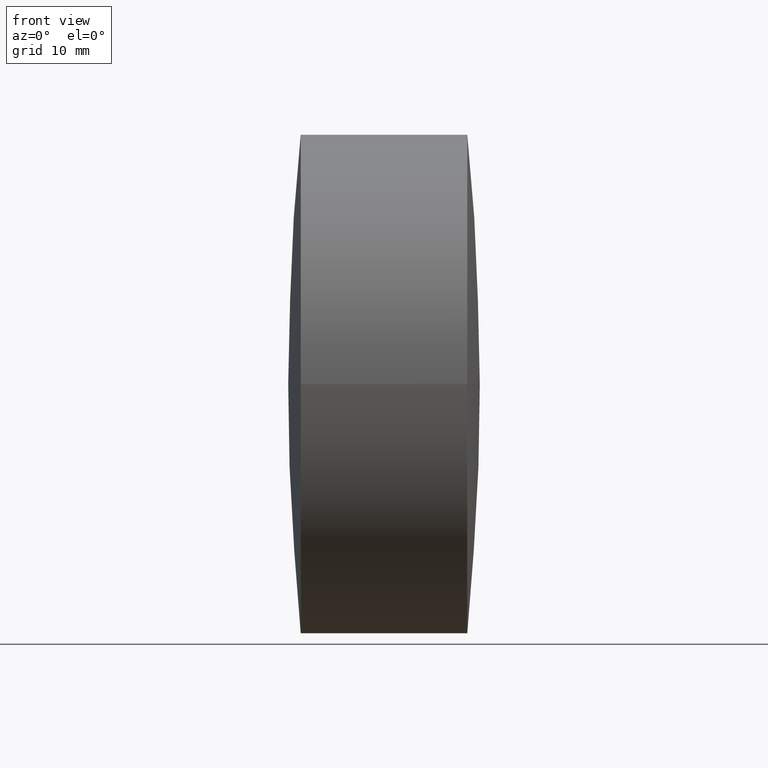
[diagram: clean part render]
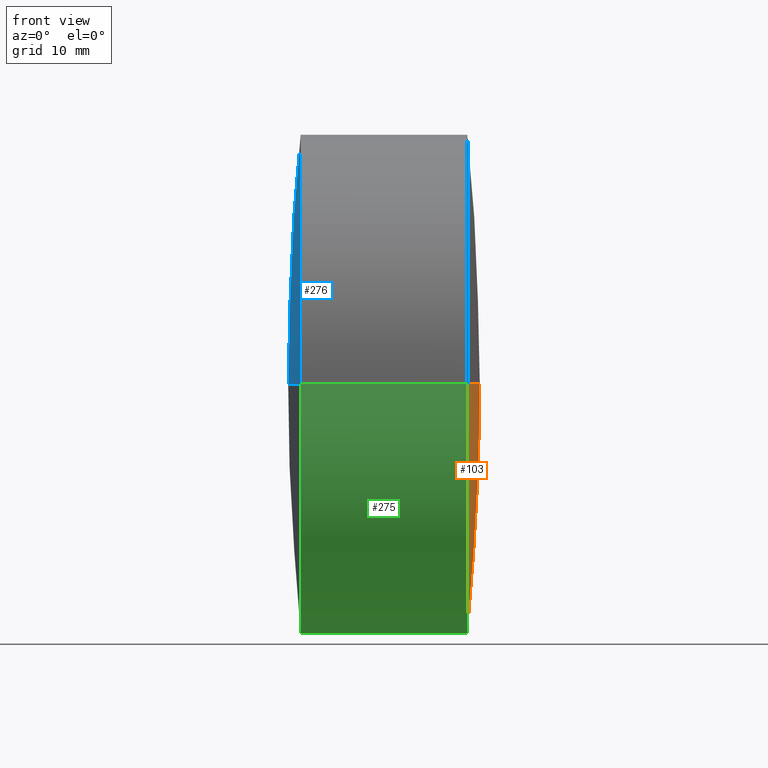
[diagram: same view with three faces highlighted in distinct colors, each labeled with its STEP entity id]
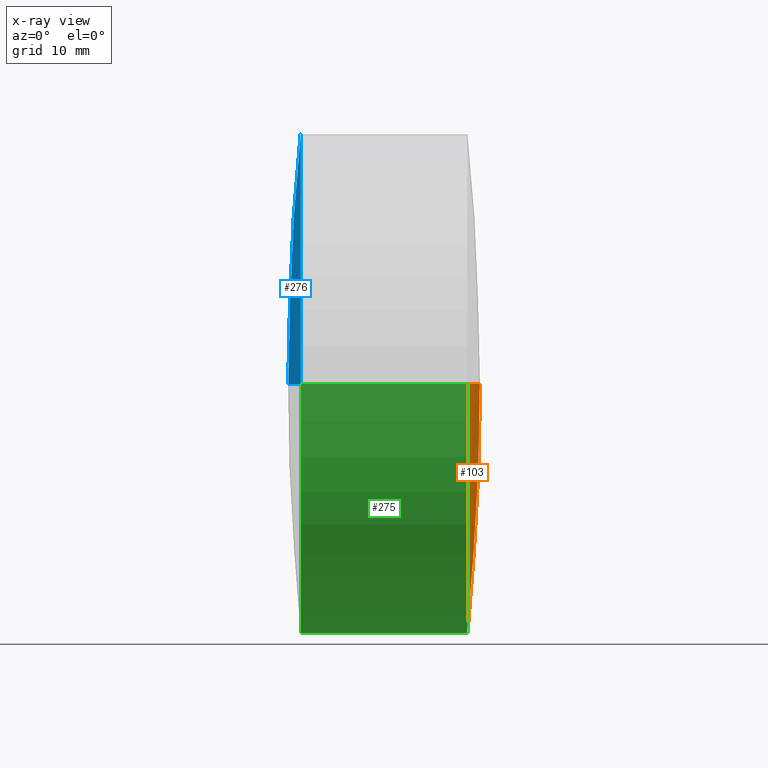
[diagram: x-ray of the same camera — body ghosted, the three highlighted faces saturated]
A machine part, front view with three faces highlighted in distinct colors.
The next image is the same camera in x-ray (body ghosted, the three faces saturated) — at least one of them is partly hidden behind the body in this view.
Their STEP definitions:

[orange] entity #103 — the highlighted spherical surface has radius 350.755 mm.
#3 = CARTESIAN_POINT ( 'NONE',  ( -99.06812836394114200, 133.9814138434225300, 0.0000000000000000000 ) ) ;
#5 = DIRECTION ( 'NONE',  ( 0.0000000000000000000, 0.0000000000000000000, -1.000000000000000000 ) ) ;
#8 = AXIS2_PLACEMENT_3D ( 'NONE', #77, #132, #74 ) ;
#9 = DIRECTION ( 'NONE',  ( 1.000000000000000000, 0.0000000000000000000, 0.0000000000000000000 ) ) ;
#21 = CARTESIAN_POINT ( 'NONE',  ( 249.9366127648179900, 168.9814138434225900, 0.0000000000000000000 ) ) ;
#26 = CARTESIAN_POINT ( 'NONE',  ( -99.06812836394114200, 133.9814138434225300, 0.0000000000000000000 ) ) ;
#34 = VERTEX_POINT ( 'NONE', #21 ) ;
#39 = AXIS2_PLACEMENT_3D ( 'NONE', #208, #72, #207 ) ;
#72 = DIRECTION ( 'NONE',  ( -1.000000000000000000, 1.772041571645068800E-014, -0.0000000000000000000 ) ) ;
#74 = DIRECTION ( 'NONE',  ( 0.0000000000000000000, 1.000000000000000000, 1.224646799147353200E-016 ) ) ;
#77 = CARTESIAN_POINT ( 'NONE',  ( -99.06812836394114200, 133.9814138434225300, 0.0000000000000000000 ) ) ;
#91 = VERTEX_POINT ( 'NONE', #253 ) ;
#103 = ADVANCED_FACE ( 'NONE', ( #297 ), #204, .T. ) ;
#123 = CIRCLE ( 'NONE', #214, 350.7553411287590800 ) ;
#124 = EDGE_LOOP ( 'NONE', ( #226, #210, #127 ) ) ;
#127 = ORIENTED_EDGE ( 'NONE', *, *, #220, .F. ) ;
#131 = CARTESIAN_POINT ( 'NONE',  ( 249.9366127648167400, 98.98141384341606400, -4.286263797015769600E-015 ) ) ;
#132 = DIRECTION ( 'NONE',  ( 2.170125038671178500E-030, 1.224646799147353200E-016, -1.000000000000000000 ) ) ;
#170 = VERTEX_POINT ( 'NONE', #131 ) ;
#178 = DIRECTION ( 'NONE',  ( 0.0000000000000000000, 0.0000000000000000000, 1.000000000000000000 ) ) ;
#204 = SPHERICAL_SURFACE ( 'NONE', #206, 350.7553411287590800 ) ;
#206 = AXIS2_PLACEMENT_3D ( 'NONE', #3, #5, #283 ) ;
#207 = DIRECTION ( 'NONE',  ( -1.744636181553802200E-014, -1.000000000000000000, 0.0000000000000000000 ) ) ;
#208 = CARTESIAN_POINT ( 'NONE',  ( 249.9366127648173700, 133.9814138434223000, 0.0000000000000000000 ) ) ;
#210 = ORIENTED_EDGE ( 'NONE', *, *, #240, .T. ) ;
#214 = AXIS2_PLACEMENT_3D ( 'NONE', #26, #178, #9 ) ;
#220 = EDGE_CURVE ( 'NONE', #34, #170, #228, .T. ) ;
#226 = ORIENTED_EDGE ( 'NONE', *, *, #258, .F. ) ;
#228 = CIRCLE ( 'NONE', #39, 35.00000000000030600 ) ;
#240 = EDGE_CURVE ( 'NONE', #91, #170, #241, .T. ) ;
#241 = CIRCLE ( 'NONE', #8, 350.7553411287590800 ) ;
#253 = CARTESIAN_POINT ( 'NONE',  ( 251.6872127648179900, 133.9814138434163300, 0.0000000000000000000 ) ) ;
#258 = EDGE_CURVE ( 'NONE', #91, #34, #123, .T. ) ;
#283 = DIRECTION ( 'NONE',  ( 1.772531508114250600E-014, 1.000000000000000000, 0.0000000000000000000 ) ) ;
#297 = FACE_OUTER_BOUND ( 'NONE', #124, .T. ) ;

[blue] entity #276 — the highlighted spherical surface has radius 350.755 mm.
#1 = DIRECTION ( 'NONE',  ( -1.000000000000000000, 1.772041571645068800E-014, -0.0000000000000000000 ) ) ;
#7 = CARTESIAN_POINT ( 'NONE',  ( 226.6046127648167500, 98.98141384342911000, -4.286263797015637900E-015 ) ) ;
#15 = AXIS2_PLACEMENT_3D ( 'NONE', #185, #95, #117 ) ;
#29 = CIRCLE ( 'NONE', #299, 350.7553411287618100 ) ;
#43 = DIRECTION ( 'NONE',  ( 0.0000000000000000000, 0.0000000000000000000, 1.000000000000000000 ) ) ;
#61 = VERTEX_POINT ( 'NONE', #66 ) ;
#66 = CARTESIAN_POINT ( 'NONE',  ( 224.8540127648180900, 133.9814138434283800, 0.0000000000000000000 ) ) ;
#70 = CIRCLE ( 'NONE', #288, 350.7553411287618100 ) ;
#71 = VERTEX_POINT ( 'NONE', #110 ) ;
#95 = DIRECTION ( 'NONE',  ( 0.0000000000000000000, 0.0000000000000000000, -1.000000000000000000 ) ) ;
#96 = DIRECTION ( 'NONE',  ( 0.0000000000000000000, 1.000000000000000000, 1.224646799147353200E-016 ) ) ;
#97 = DIRECTION ( 'NONE',  ( 2.170125038671178500E-030, 1.224646799147353200E-016, -1.000000000000000000 ) ) ;
#110 = CARTESIAN_POINT ( 'NONE',  ( 226.6046127648180300, 168.9814138434219000, 0.0000000000000000000 ) ) ;
#115 = DIRECTION ( 'NONE',  ( 1.000000000000000000, 0.0000000000000000000, 0.0000000000000000000 ) ) ;
#117 = DIRECTION ( 'NONE',  ( 1.772531508114236400E-014, 1.000000000000000000, 0.0000000000000000000 ) ) ;
#125 = EDGE_CURVE ( 'NONE', #199, #71, #150, .T. ) ;
#126 = SPHERICAL_SURFACE ( 'NONE', #15, 350.7553411287618100 ) ;
#133 = ORIENTED_EDGE ( 'NONE', *, *, #243, .F. ) ;
#146 = EDGE_CURVE ( 'NONE', #71, #61, #29, .T. ) ;
#150 = CIRCLE ( 'NONE', #281, 34.99999999999989300 ) ;
#153 = ORIENTED_EDGE ( 'NONE', *, *, #146, .T. ) ;
#159 = CARTESIAN_POINT ( 'NONE',  ( 575.6093538935799600, 133.9814138434221300, 0.0000000000000000000 ) ) ;
#185 = CARTESIAN_POINT ( 'NONE',  ( 575.6093538935799600, 133.9814138434221300, 0.0000000000000000000 ) ) ;
#186 = FACE_OUTER_BOUND ( 'NONE', #192, .T. ) ;
#192 = EDGE_LOOP ( 'NONE', ( #133, #302, #153 ) ) ;
#199 = VERTEX_POINT ( 'NONE', #7 ) ;
#230 = CARTESIAN_POINT ( 'NONE',  ( 575.6093538935799600, 133.9814138434221300, 0.0000000000000000000 ) ) ;
#243 = EDGE_CURVE ( 'NONE', #199, #61, #70, .T. ) ;
#251 = DIRECTION ( 'NONE',  ( -1.744636181553822700E-014, -1.000000000000000000, 0.0000000000000000000 ) ) ;
#254 = CARTESIAN_POINT ( 'NONE',  ( 226.6046127648173800, 133.9814138434227000, 0.0000000000000000000 ) ) ;
#276 = ADVANCED_FACE ( 'NONE', ( #186 ), #126, .T. ) ;
#281 = AXIS2_PLACEMENT_3D ( 'NONE', #254, #1, #251 ) ;
#288 = AXIS2_PLACEMENT_3D ( 'NONE', #159, #97, #96 ) ;
#299 = AXIS2_PLACEMENT_3D ( 'NONE', #230, #43, #115 ) ;
#302 = ORIENTED_EDGE ( 'NONE', *, *, #125, .T. ) ;

[green] entity #275 — the highlighted cylindrical surface (partial cylindrical patch) has radius 35 mm, axis along (-1, 0, -0).
#2 = EDGE_CURVE ( 'NONE', #71, #199, #164, .T. ) ;
#7 = CARTESIAN_POINT ( 'NONE',  ( 226.6046127648167500, 98.98141384342911000, -4.286263797015637900E-015 ) ) ;
#21 = CARTESIAN_POINT ( 'NONE',  ( 249.9366127648179900, 168.9814138434225900, 0.0000000000000000000 ) ) ;
#34 = VERTEX_POINT ( 'NONE', #21 ) ;
#36 = LINE ( 'NONE', #92, #166 ) ;
#38 = VECTOR ( 'NONE', #175, 1000.000000000000000 ) ;
#39 = AXIS2_PLACEMENT_3D ( 'NONE', #208, #72, #207 ) ;
#42 = EDGE_CURVE ( 'NONE', #34, #71, #223, .T. ) ;
#44 = CARTESIAN_POINT ( 'NONE',  ( 226.6046127648173800, 133.9814138434227000, 0.0000000000000000000 ) ) ;
#57 = ORIENTED_EDGE ( 'NONE', *, *, #220, .T. ) ;
#65 = EDGE_CURVE ( 'NONE', #170, #199, #36, .T. ) ;
#71 = VERTEX_POINT ( 'NONE', #110 ) ;
#72 = DIRECTION ( 'NONE',  ( -1.000000000000000000, 1.772041571645068800E-014, -0.0000000000000000000 ) ) ;
#83 = EDGE_LOOP ( 'NONE', ( #143, #57, #105, #280 ) ) ;
#92 = CARTESIAN_POINT ( 'NONE',  ( 221.4904475524727200, 98.98141384342270000, 0.0000000000000000000 ) ) ;
#105 = ORIENTED_EDGE ( 'NONE', *, *, #65, .T. ) ;
#110 = CARTESIAN_POINT ( 'NONE',  ( 226.6046127648180300, 168.9814138434219000, 0.0000000000000000000 ) ) ;
#131 = CARTESIAN_POINT ( 'NONE',  ( 249.9366127648167400, 98.98141384341606400, -4.286263797015769600E-015 ) ) ;
#143 = ORIENTED_EDGE ( 'NONE', *, *, #42, .F. ) ;
#161 = AXIS2_PLACEMENT_3D ( 'NONE', #205, #293, #231 ) ;
#164 = CIRCLE ( 'NONE', #246, 34.99999999999989300 ) ;
#166 = VECTOR ( 'NONE', #200, 1000.000000000000000 ) ;
#170 = VERTEX_POINT ( 'NONE', #131 ) ;
#175 = DIRECTION ( 'NONE',  ( -1.000000000000000000, 1.772041571645068800E-014, -0.0000000000000000000 ) ) ;
#177 = DIRECTION ( 'NONE',  ( -1.000000000000000000, 1.772041571645068800E-014, -0.0000000000000000000 ) ) ;
#191 = CYLINDRICAL_SURFACE ( 'NONE', #161, 35.00000000000009900 ) ;
#199 = VERTEX_POINT ( 'NONE', #7 ) ;
#200 = DIRECTION ( 'NONE',  ( -1.000000000000000000, 1.772041571645068800E-014, -0.0000000000000000000 ) ) ;
#201 = CARTESIAN_POINT ( 'NONE',  ( 221.4904475524739400, 168.9814138434229000, 4.286263797015748300E-015 ) ) ;
#205 = CARTESIAN_POINT ( 'NONE',  ( 221.4904475524733100, 133.9814138434227900, 0.0000000000000000000 ) ) ;
#207 = DIRECTION ( 'NONE',  ( -1.744636181553802200E-014, -1.000000000000000000, 0.0000000000000000000 ) ) ;
#208 = CARTESIAN_POINT ( 'NONE',  ( 249.9366127648173700, 133.9814138434223000, 0.0000000000000000000 ) ) ;
#220 = EDGE_CURVE ( 'NONE', #34, #170, #228, .T. ) ;
#223 = LINE ( 'NONE', #201, #38 ) ;
#228 = CIRCLE ( 'NONE', #39, 35.00000000000030600 ) ;
#231 = DIRECTION ( 'NONE',  ( -1.744636181553812300E-014, -1.000000000000000000, 0.0000000000000000000 ) ) ;
#246 = AXIS2_PLACEMENT_3D ( 'NONE', #44, #177, #286 ) ;
#269 = FACE_OUTER_BOUND ( 'NONE', #83, .T. ) ;
#275 = ADVANCED_FACE ( 'NONE', ( #269 ), #191, .T. ) ;
#280 = ORIENTED_EDGE ( 'NONE', *, *, #2, .F. ) ;
#286 = DIRECTION ( 'NONE',  ( -1.744636181553822700E-014, -1.000000000000000000, 0.0000000000000000000 ) ) ;
#293 = DIRECTION ( 'NONE',  ( -1.000000000000000000, 1.772041571645068800E-014, -0.0000000000000000000 ) ) ;